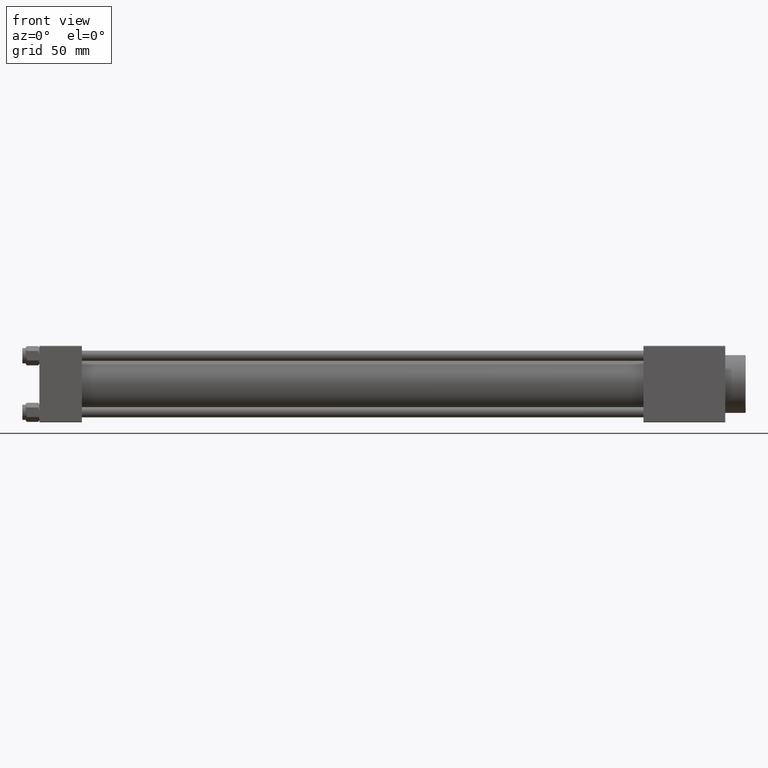
[diagram: clean part render]
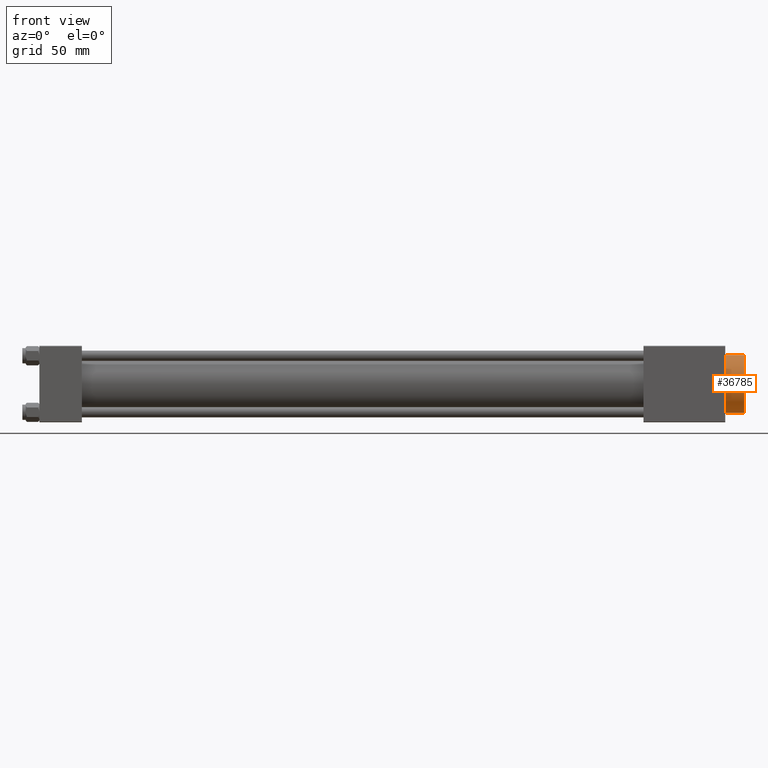
[diagram: same view with one face highlighted and labeled with its STEP entity id]
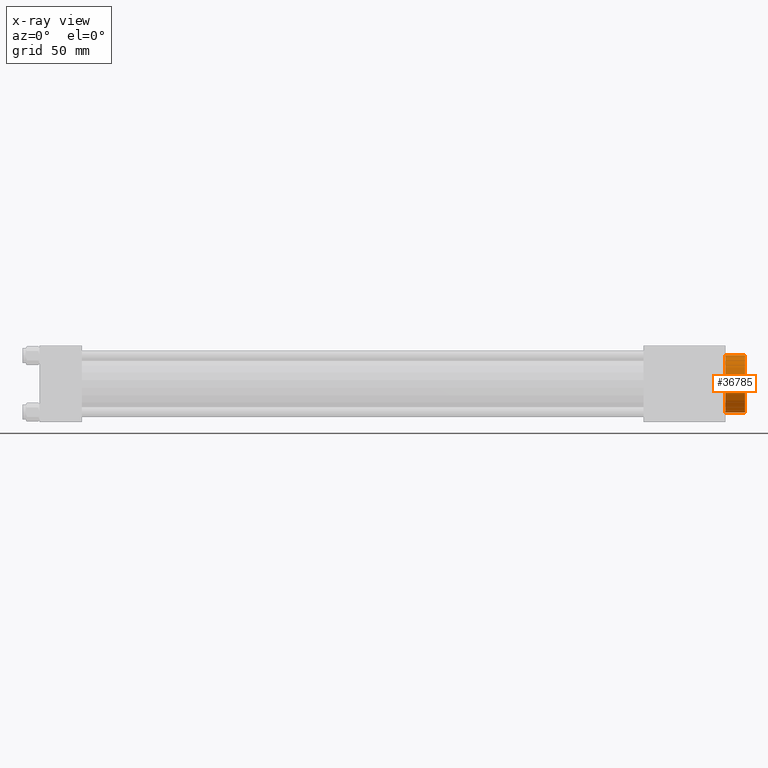
[diagram: x-ray of the same camera — body ghosted, the highlighted face saturated]
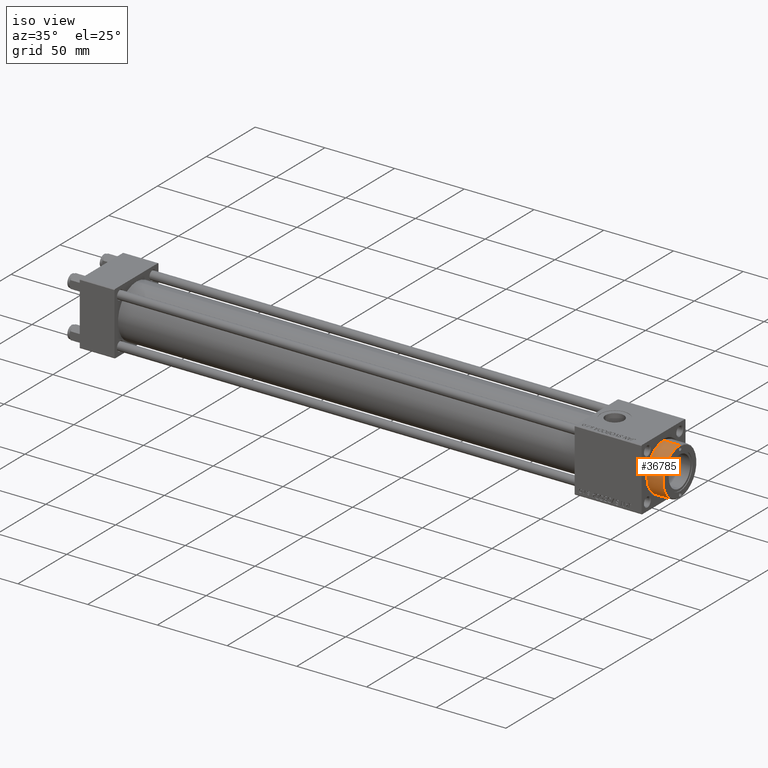
[diagram: same view with one face highlighted and labeled with its STEP entity id]
A machine part, front view. The second image highlights one B-rep face of the part: STEP entity #36785.
The next image is the same camera in x-ray: the body ghosted, the highlighted face saturated — about 0% of this face is hidden behind the body in this view.
A second angle (iso view) of the same face is appended — the face is thin or edge-on in the first view.
In plain terms, the highlighted cylindrical surface (edge-blend (fillet) strip) has radius 17 mm, axis along (-1, -0, -0).
Its self-contained STEP definition (entity closure, byte-faithful):
#1721 = CARTESIAN_POINT ( 'NONE',  ( 17.00000000000000000, 2.081899558550500280E-15, 40.70000000000000284 ) ) ;
#3098 = CYLINDRICAL_SURFACE ( 'NONE', #46800, 17.00000000000000000 ) ;
#4666 = VERTEX_POINT ( 'NONE', #40100 ) ;
#9340 = EDGE_CURVE ( 'NONE', #42118, #4666, #20949, .T. ) ;
#11168 = CARTESIAN_POINT ( 'NONE',  ( 0.000000000000000000, 0.000000000000000000, 40.19999999999999574 ) ) ;
#11310 = DIRECTION ( 'NONE',  ( -0.000000000000000000, -0.000000000000000000, -1.000000000000000000 ) ) ;
#11637 = CARTESIAN_POINT ( 'NONE',  ( -17.00000000000000000, 0.000000000000000000, 40.19999999999999574 ) ) ;
#12308 = VERTEX_POINT ( 'NONE', #31473 ) ;
#12440 = EDGE_CURVE ( 'NONE', #44896, #42118, #34014, .T. ) ;
#13283 = ORIENTED_EDGE ( 'NONE', *, *, #42039, .T. ) ;
#16010 = EDGE_LOOP ( 'NONE', ( #49290, #13283, #47645, #20372 ) ) ;
#18890 = DIRECTION ( 'NONE',  ( 0.000000000000000000, 0.000000000000000000, -1.000000000000000000 ) ) ;
#19291 = CARTESIAN_POINT ( 'NONE',  ( 0.000000000000000000, 0.000000000000000000, 40.70000000000000284 ) ) ;
#20372 = ORIENTED_EDGE ( 'NONE', *, *, #9340, .T. ) ;
#20949 = CIRCLE ( 'NONE', #27509, 17.00000000000000000 ) ;
#21411 = DIRECTION ( 'NONE',  ( -0.000000000000000000, -0.000000000000000000, -1.000000000000000000 ) ) ;
#25436 = EDGE_CURVE ( 'NONE', #12308, #4666, #33599, .T. ) ;
#26486 = DIRECTION ( 'NONE',  ( -1.000000000000000000, 0.000000000000000000, 0.000000000000000000 ) ) ;
#26845 = DIRECTION ( 'NONE',  ( 1.000000000000000000, 0.000000000000000000, 0.000000000000000000 ) ) ;
#27348 = CARTESIAN_POINT ( 'NONE',  ( 0.000000000000000000, 0.000000000000000000, 28.69999999999999929 ) ) ;
#27509 = AXIS2_PLACEMENT_3D ( 'NONE', #27348, #46617, #43014 ) ;
#31473 = CARTESIAN_POINT ( 'NONE',  ( 17.00000000000000000, 2.081899558550500280E-15, 40.19999999999999574 ) ) ;
#33599 = LINE ( 'NONE', #1721, #36053 ) ;
#34014 = LINE ( 'NONE', #48642, #40632 ) ;
#36053 = VECTOR ( 'NONE', #49250, 1000.000000000000000 ) ;
#36218 = AXIS2_PLACEMENT_3D ( 'NONE', #11168, #18890, #26845 ) ;
#36785 = ADVANCED_FACE ( 'NONE', ( #47260 ), #3098, .T. ) ;
#37857 = CIRCLE ( 'NONE', #36218, 17.00000000000000000 ) ;
#40100 = CARTESIAN_POINT ( 'NONE',  ( 17.00000000000000000, 2.081899558550500280E-15, 28.69999999999999929 ) ) ;
#40632 = VECTOR ( 'NONE', #21411, 1000.000000000000000 ) ;
#42039 = EDGE_CURVE ( 'NONE', #12308, #44896, #37857, .T. ) ;
#42118 = VERTEX_POINT ( 'NONE', #44277 ) ;
#43014 = DIRECTION ( 'NONE',  ( 1.000000000000000000, 0.000000000000000000, 0.000000000000000000 ) ) ;
#44277 = CARTESIAN_POINT ( 'NONE',  ( -17.00000000000000000, 0.000000000000000000, 28.69999999999999929 ) ) ;
#44896 = VERTEX_POINT ( 'NONE', #11637 ) ;
#46617 = DIRECTION ( 'NONE',  ( 0.000000000000000000, 0.000000000000000000, 1.000000000000000000 ) ) ;
#46800 = AXIS2_PLACEMENT_3D ( 'NONE', #19291, #11310, #26486 ) ;
#47260 = FACE_OUTER_BOUND ( 'NONE', #16010, .T. ) ;
#47645 = ORIENTED_EDGE ( 'NONE', *, *, #12440, .T. ) ;
#48642 = CARTESIAN_POINT ( 'NONE',  ( -17.00000000000000000, 0.000000000000000000, 40.70000000000000284 ) ) ;
#49250 = DIRECTION ( 'NONE',  ( -0.000000000000000000, -0.000000000000000000, -1.000000000000000000 ) ) ;
#49290 = ORIENTED_EDGE ( 'NONE', *, *, #25436, .F. ) ;